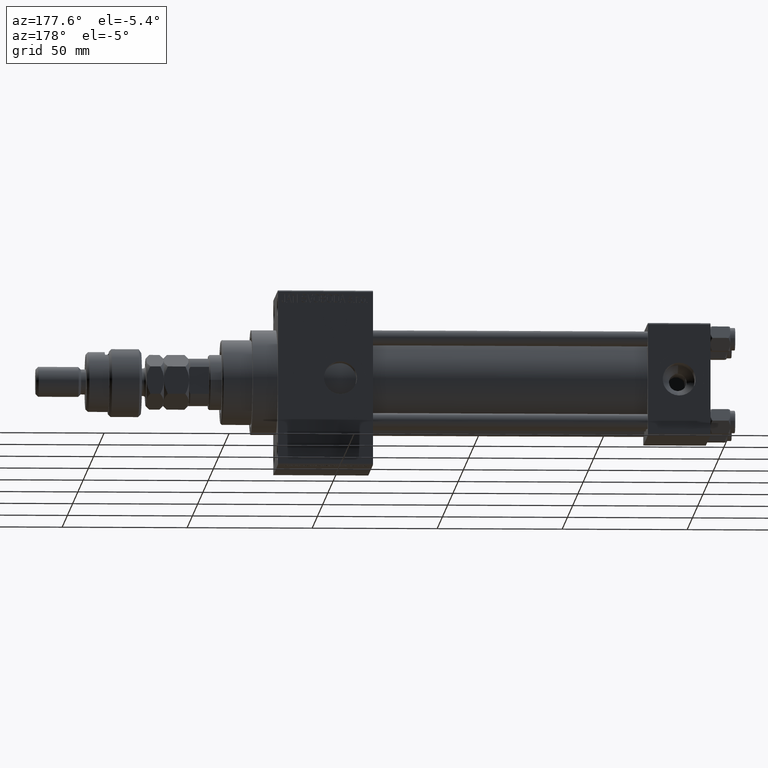
[diagram: clean part render]
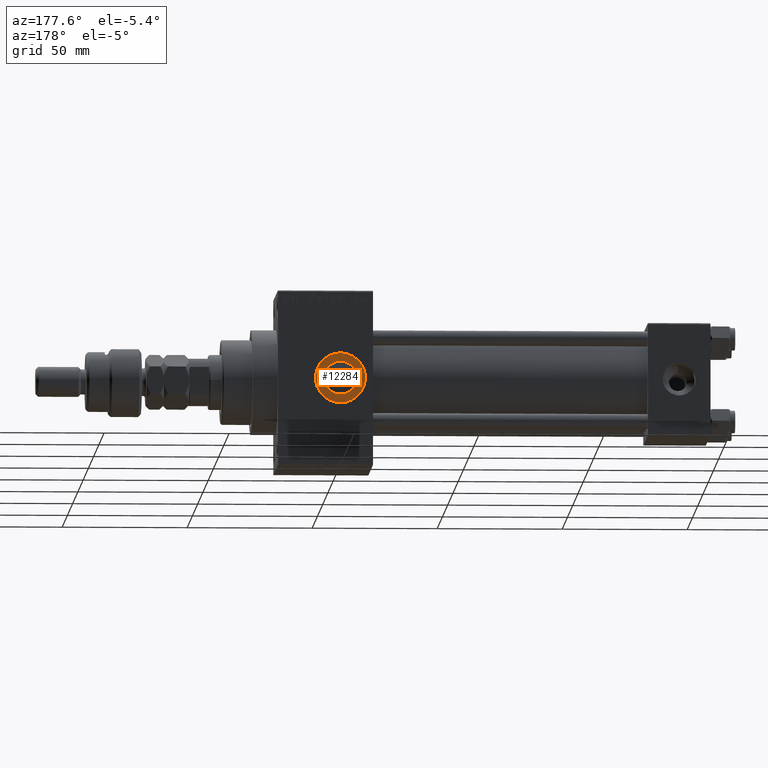
[diagram: same view with one face highlighted and labeled with its STEP entity id]
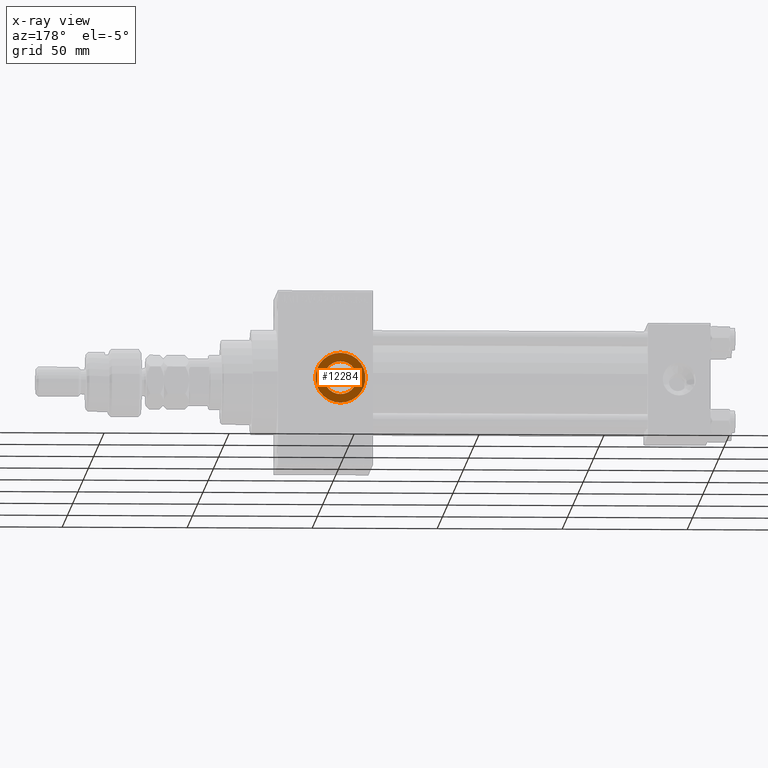
[diagram: x-ray of the same camera — body ghosted, the highlighted face saturated]
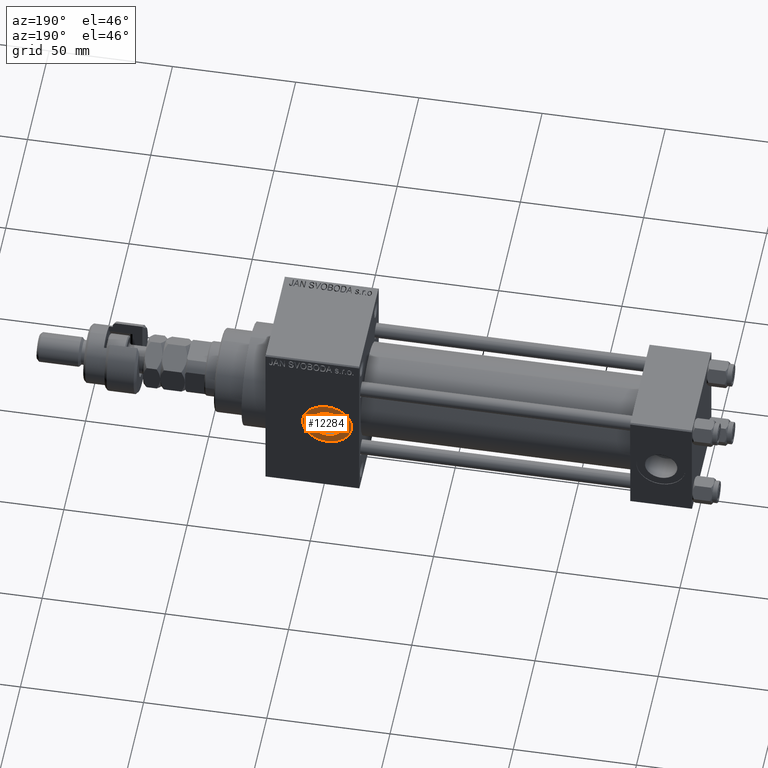
[diagram: same view with one face highlighted and labeled with its STEP entity id]
A machine part, auxiliary view. The second image highlights one B-rep face of the part: STEP entity #12284.
The next image is the same camera in x-ray: the body ghosted, the highlighted face saturated — about 0% of this face is hidden behind the body in this view.
A second angle (auxiliary view) of the same face is appended — the face is thin or edge-on in the first view.
In plain terms, the highlighted planar face has unit normal (0, 1, 0).
Its self-contained STEP definition (entity closure, byte-faithful):
#583 = CIRCLE ( 'NONE', #33301, 6.580000000000015170 ) ;
#1271 = DIRECTION ( 'NONE',  ( 0.000000000000000000, 1.000000000000000000, 0.000000000000000000 ) ) ;
#2255 = EDGE_CURVE ( 'NONE', #46963, #41975, #2464, .T. ) ;
#2464 = CIRCLE ( 'NONE', #34338, 10.00000000000000888 ) ;
#4399 = CARTESIAN_POINT ( 'NONE',  ( 148.0000000000000284, 22.29999999999999716, 6.580000000000015170 ) ) ;
#5708 = EDGE_LOOP ( 'NONE', ( #44088, #16767 ) ) ;
#6648 = CARTESIAN_POINT ( 'NONE',  ( 148.0000000000000284, 22.29999999999999716, 0.000000000000000000 ) ) ;
#7712 = DIRECTION ( 'NONE',  ( 0.000000000000000000, 0.000000000000000000, 1.000000000000000000 ) ) ;
#8111 = ORIENTED_EDGE ( 'NONE', *, *, #17774, .F. ) ;
#9705 = DIRECTION ( 'NONE',  ( 0.000000000000000000, 0.000000000000000000, 1.000000000000000000 ) ) ;
#10878 = DIRECTION ( 'NONE',  ( 0.000000000000000000, 1.000000000000000000, 0.000000000000000000 ) ) ;
#11007 = PLANE ( 'NONE',  #31301 ) ;
#11666 = CARTESIAN_POINT ( 'NONE',  ( 148.0000000000000284, 22.29999999999999716, 0.000000000000000000 ) ) ;
#11732 = CIRCLE ( 'NONE', #38581, 6.580000000000015170 ) ;
#12284 = ADVANCED_FACE ( 'NONE', ( #23357, #42796 ), #11007, .T. ) ;
#13868 = DIRECTION ( 'NONE',  ( 0.000000000000000000, 0.000000000000000000, 1.000000000000000000 ) ) ;
#16767 = ORIENTED_EDGE ( 'NONE', *, *, #24949, .T. ) ;
#17774 = EDGE_CURVE ( 'NONE', #24648, #25262, #583, .T. ) ;
#17956 = DIRECTION ( 'NONE',  ( 0.000000000000000000, 1.000000000000000000, 0.000000000000000000 ) ) ;
#20239 = CARTESIAN_POINT ( 'NONE',  ( 148.0000000000000284, 22.29999999999999716, 0.000000000000000000 ) ) ;
#21593 = AXIS2_PLACEMENT_3D ( 'NONE', #11666, #10878, #7712 ) ;
#23357 = FACE_BOUND ( 'NONE', #24435, .T. ) ;
#24435 = EDGE_LOOP ( 'NONE', ( #8111, #30881 ) ) ;
#24648 = VERTEX_POINT ( 'NONE', #4399 ) ;
#24949 = EDGE_CURVE ( 'NONE', #41975, #46963, #26650, .T. ) ;
#25262 = VERTEX_POINT ( 'NONE', #43127 ) ;
#26259 = DIRECTION ( 'NONE',  ( 0.000000000000000000, 1.000000000000000000, 0.000000000000000000 ) ) ;
#26607 = DIRECTION ( 'NONE',  ( 0.000000000000000000, 0.000000000000000000, 1.000000000000000000 ) ) ;
#26650 = CIRCLE ( 'NONE', #21593, 10.00000000000000888 ) ;
#30881 = ORIENTED_EDGE ( 'NONE', *, *, #39406, .F. ) ;
#31301 = AXIS2_PLACEMENT_3D ( 'NONE', #35193, #26259, #43303 ) ;
#33301 = AXIS2_PLACEMENT_3D ( 'NONE', #37012, #1271, #13868 ) ;
#34338 = AXIS2_PLACEMENT_3D ( 'NONE', #20239, #42013, #9705 ) ;
#35193 = CARTESIAN_POINT ( 'NONE',  ( 148.0000000000000284, 22.29999999999999716, 0.000000000000000000 ) ) ;
#37012 = CARTESIAN_POINT ( 'NONE',  ( 148.0000000000000284, 22.29999999999999716, 0.000000000000000000 ) ) ;
#38581 = AXIS2_PLACEMENT_3D ( 'NONE', #6648, #17956, #26607 ) ;
#39406 = EDGE_CURVE ( 'NONE', #25262, #24648, #11732, .T. ) ;
#39614 = CARTESIAN_POINT ( 'NONE',  ( 148.0000000000000284, 22.29999999999999716, -10.00000000000000888 ) ) ;
#41975 = VERTEX_POINT ( 'NONE', #39614 ) ;
#42013 = DIRECTION ( 'NONE',  ( 0.000000000000000000, 1.000000000000000000, 0.000000000000000000 ) ) ;
#42796 = FACE_OUTER_BOUND ( 'NONE', #5708, .T. ) ;
#43127 = CARTESIAN_POINT ( 'NONE',  ( 148.0000000000000284, 22.29999999999999716, -6.580000000000015170 ) ) ;
#43303 = DIRECTION ( 'NONE',  ( 0.000000000000000000, -0.000000000000000000, 1.000000000000000000 ) ) ;
#44088 = ORIENTED_EDGE ( 'NONE', *, *, #2255, .T. ) ;
#46963 = VERTEX_POINT ( 'NONE', #50339 ) ;
#50339 = CARTESIAN_POINT ( 'NONE',  ( 148.0000000000000284, 22.29999999999999716, 10.00000000000000888 ) ) ;